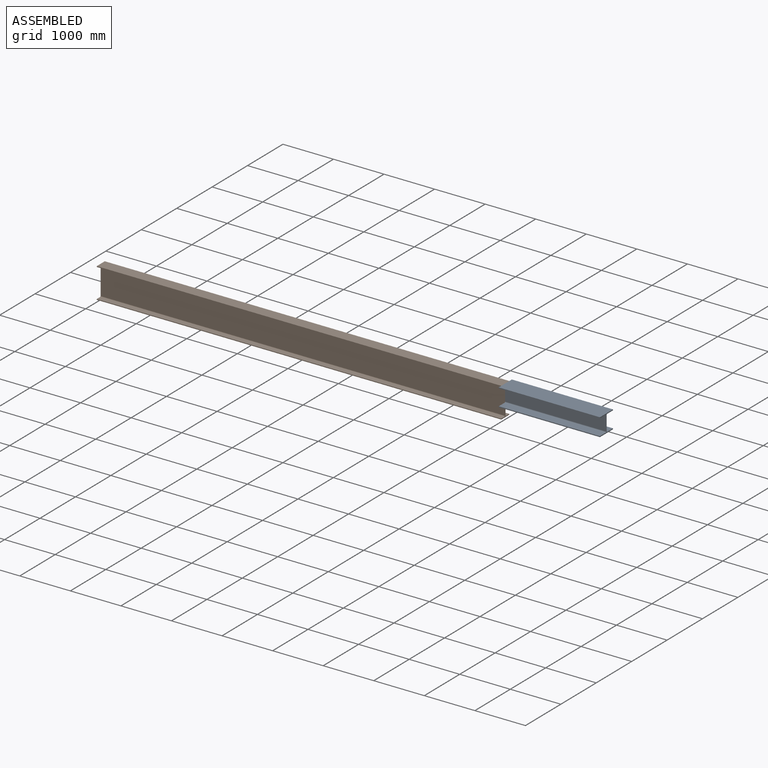
[diagram: assembled view]
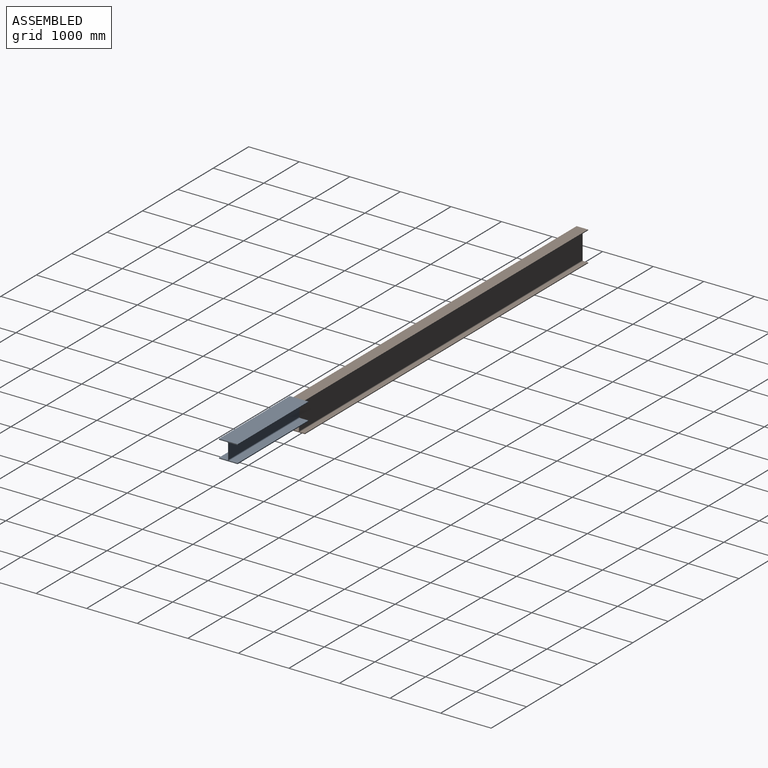
[diagram: assembled view, second angle]
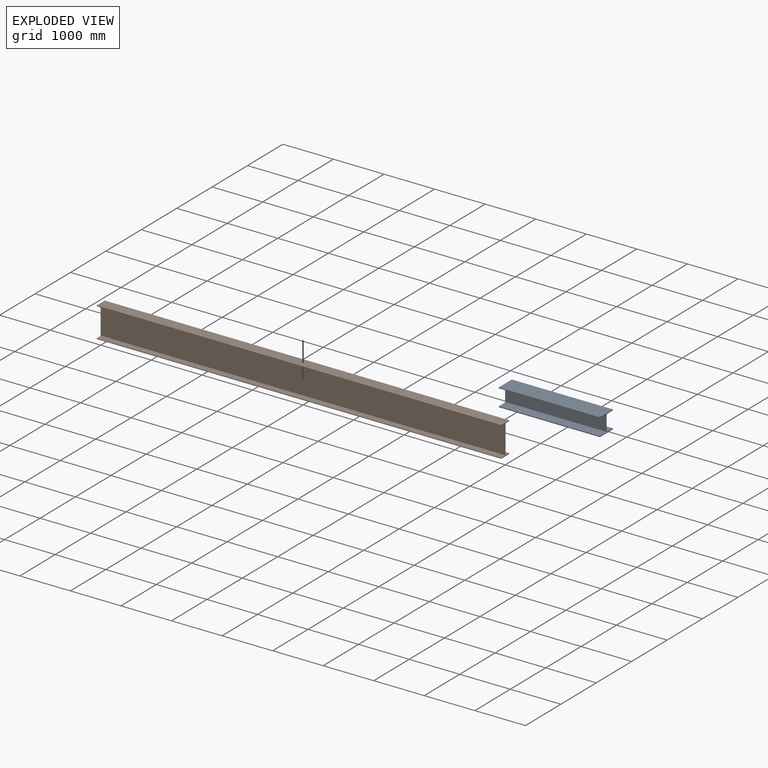
[diagram: exploded view]
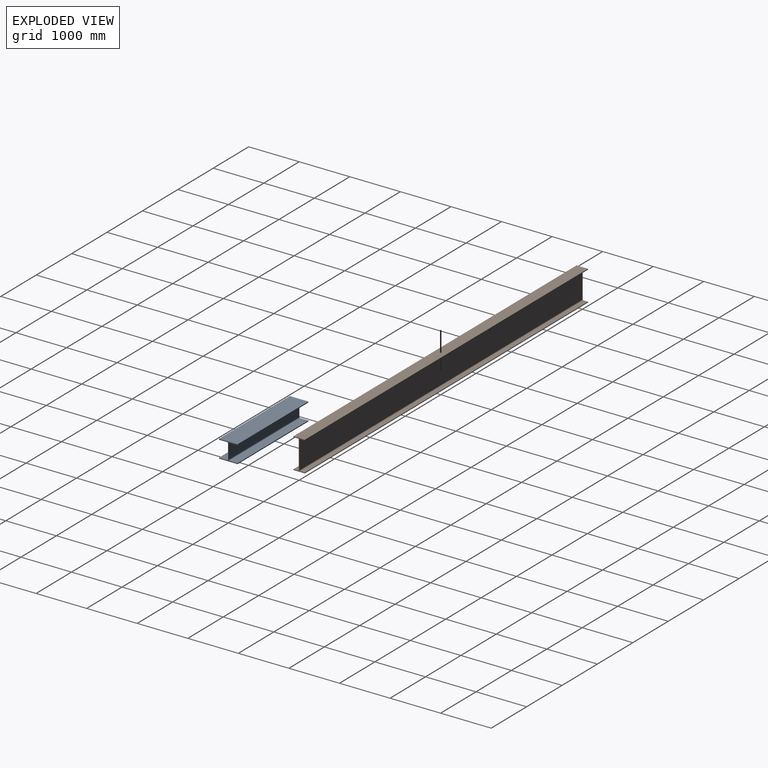
[diagram: exploded view, second angle]
ASSEMBLY  parts=2 mates=2
PART A: 18 faces, bbox 2000x368.6x355.6 mm
  f0: plane 2000x368.6mm, normal (0,0,1), area 737200mm2, adj f1,f15,f16,f17
  f1: plane 2000x17.5mm, normal (0,-1,0), area 35000mm2, adj f0,f2,f16,f17
  f2: plane 2000x163.9mm, normal (0,0,-1), area 327800mm2, adj f1,f3,f16,f17
  f3: cylinder r=15.2mm len=2000mm, axis (-1,0,0), area 47752.2mm2, adj f2,f4,f16,f17
  f4: plane 2000x290.2mm, normal (0,-1,0), area 580400mm2, adj f3,f5,f16,f17
  f5: cylinder r=15.2mm len=2000mm, axis (-1,0,0), area 47752.2mm2, adj f4,f6,f16,f17
  f6: plane 2000x163.9mm, normal (0,0,1), area 327800mm2, adj f5,f7,f16,f17
  f7: plane 2000x17.5mm, normal (0,-1,0), area 35000mm2, adj f6,f8,f16,f17
  f8: plane 2000x368.6mm, normal (0,0,-1), area 737200mm2, adj f7,f9,f16,f17
  f9: plane 2000x17.5mm, normal (0,1,0), area 35000mm2, adj f8,f10,f16,f17
  f10: plane 2000x163.9mm, normal (0,0,1), area 327800mm2, adj f9,f11,f16,f17
  f11: cylinder r=15.2mm len=2000mm, axis (-1,0,0), area 47752.2mm2, adj f10,f12,f16,f17
  f12: plane 2000x290.2mm, normal (0,1,0), area 580400mm2, adj f11,f13,f16,f17
  f13: cylinder r=15.2mm len=2000mm, axis (-1,0,0), area 47752.2mm2, adj f12,f14,f16,f17
  f14: plane 2000x163.9mm, normal (0,0,-1), area 327800mm2, adj f13,f15,f16,f17
  f15: plane 2000x17.5mm, normal (0,1,0), area 35000mm2, adj f0,f14,f16,f17
  f16: plane 368.6x355.6mm, normal (1,0,0), area 16433.6mm2, adj f0,f1,f2,f3,f4,f5,f6,f7
  f17: plane 368.6x355.6mm, normal (-1,0,0), area 16433.6mm2, adj f0,f1,f2,f3,f4,f5,f6,f7
PART B: 18 faces, bbox 8000x227.6x602.6 mm
  f0: plane 8000x14.8mm, normal (0,-1,0), area 118400mm2, adj f1,f15,f16,f17
  f1: plane 8000x95.85mm, normal (0,0,-1), area 766800mm2, adj f0,f2,f16,f17
  f2: cylinder r=12.7mm len=8000mm, axis (-1,0,0), area 159592.9mm2, adj f1,f3,f16,f17
  f3: plane 8000x547.6mm, normal (0,-1,0), area 4380800mm2, adj f2,f4,f16,f17
  f4: cylinder r=12.7mm len=8000mm, axis (-1,0,0), area 159592.9mm2, adj f3,f5,f16,f17
  f5: plane 8000x95.85mm, normal (0,0,1), area 766800mm2, adj f4,f6,f16,f17
  f6: plane 8000x14.8mm, normal (0,-1,0), area 118400mm2, adj f5,f7,f16,f17
  f7: plane 8000x227.6mm, normal (0,0,-1), area 1820800mm2, adj f6,f8,f16,f17
  f8: plane 8000x14.8mm, normal (0,1,0), area 118400mm2, adj f7,f9,f16,f17
  f9: plane 8000x95.85mm, normal (0,0,1), area 766800mm2, adj f8,f10,f16,f17
  f10: cylinder r=12.7mm len=8000mm, axis (-1,0,0), area 159592.9mm2, adj f9,f11,f16,f17
  f11: plane 8000x547.6mm, normal (0,1,0), area 4380800mm2, adj f10,f12,f16,f17
  f12: cylinder r=12.7mm len=8000mm, axis (-1,0,0), area 159592.9mm2, adj f11,f13,f16,f17
  f13: plane 8000x95.85mm, normal (0,0,-1), area 766800mm2, adj f12,f14,f16,f17
  f14: plane 8000x14.8mm, normal (0,1,0), area 118400mm2, adj f13,f15,f16,f17
  f15: plane 8000x227.6mm, normal (0,0,1), area 1820800mm2, adj f0,f14,f16,f17
  f16: plane 602.6x227.6mm, normal (1,0,0), area 12891.9mm2, adj f0,f1,f2,f3,f4,f5,f6,f7
  f17: plane 602.6x227.6mm, normal (-1,0,0), area 12891.9mm2, adj f0,f1,f2,f3,f4,f5,f6,f7
PLACE A t=(8000,0,123.5)mm
PLACE B at identity fixed
MATE planar B.f15 <-> A.f0  axis (0,0,1) through (4000,0,301.3)mm
MATE planar A.f17 <-> B.f16  axis (-1,0,0) through (8000,0,123.5)mm
